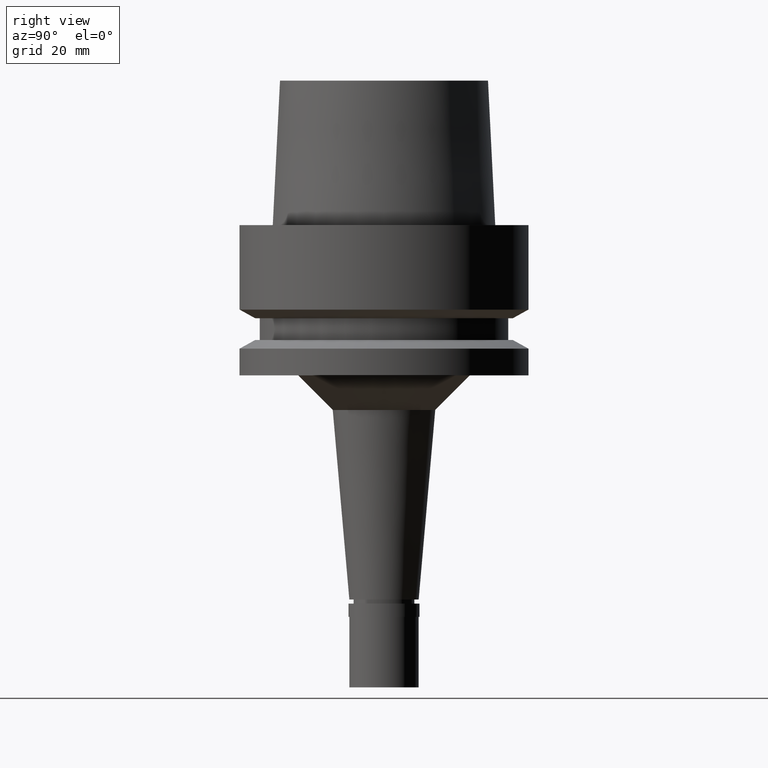
[diagram: clean part render]
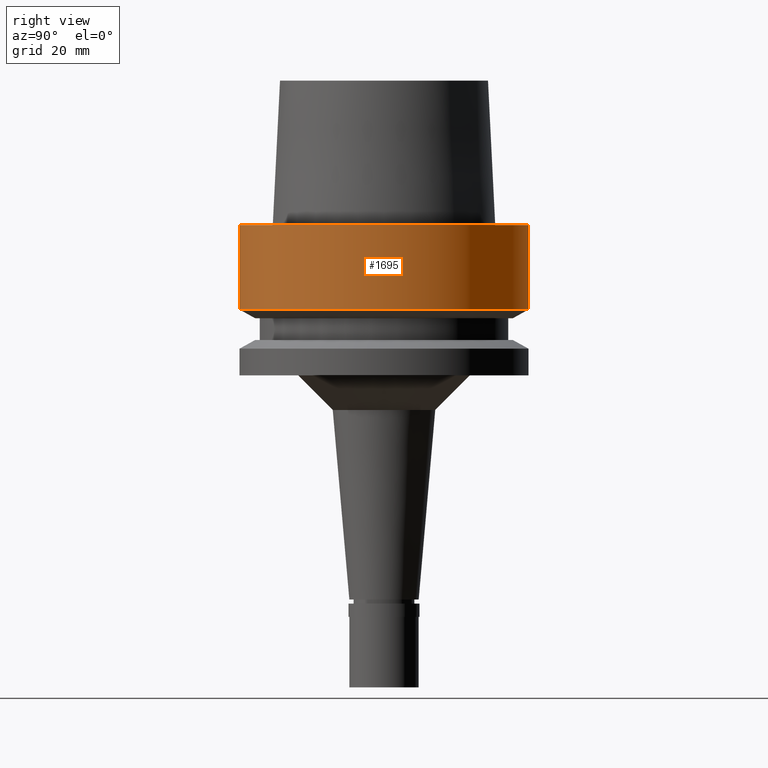
[diagram: same view with one face highlighted and labeled with its STEP entity id]
A machine part, right view. The second image highlights one B-rep face of the part: STEP entity #1695.
In plain terms, the highlighted cylindrical surface (partial cylindrical patch) has radius 25 mm, axis along (0, 0, -1).
Its self-contained STEP definition (entity closure, byte-faithful):
#17 = CIRCLE ( 'NONE', #442, 25.00000000000000000 ) ;
#104 = CARTESIAN_POINT ( 'NONE',  ( 0.0000000000000000000, 0.0000000000000000000, 30.05000000000000071 ) ) ;
#186 = CARTESIAN_POINT ( 'NONE',  ( 0.0000000000000000000, -25.00000000000000000, 2.605323364453999397E-14 ) ) ;
#442 = AXIS2_PLACEMENT_3D ( 'NONE', #2165, #1949, #2556 ) ;
#501 = CARTESIAN_POINT ( 'NONE',  ( 0.0000000000000000000, -25.00000000000000000, 3.907985046680999726E-14 ) ) ;
#535 = VERTEX_POINT ( 'NONE', #905 ) ;
#572 = DIRECTION ( 'NONE',  ( 0.0000000000000000000, 0.0000000000000000000, -1.000000000000000000 ) ) ;
#583 = EDGE_CURVE ( 'NONE', #1531, #535, #1700, .T. ) ;
#618 = CIRCLE ( 'NONE', #1515, 25.00000000000000000 ) ;
#654 = VECTOR ( 'NONE', #1690, 1000.000000000000000 ) ;
#715 = ORIENTED_EDGE ( 'NONE', *, *, #1379, .T. ) ;
#834 = VERTEX_POINT ( 'NONE', #2342 ) ;
#905 = CARTESIAN_POINT ( 'NONE',  ( 0.0000000000000000000, -25.00000000000000000, -14.61835441913999922 ) ) ;
#1169 = CARTESIAN_POINT ( 'NONE',  ( 0.0000000000000000000, 25.00000000000000000, 2.605323364453999397E-14 ) ) ;
#1379 = EDGE_CURVE ( 'NONE', #535, #834, #17, .T. ) ;
#1385 = ORIENTED_EDGE ( 'NONE', *, *, #583, .T. ) ;
#1387 = ORIENTED_EDGE ( 'NONE', *, *, #1789, .T. ) ;
#1515 = AXIS2_PLACEMENT_3D ( 'NONE', #1631, #2178, #2016 ) ;
#1531 = VERTEX_POINT ( 'NONE', #501 ) ;
#1575 = DIRECTION ( 'NONE',  ( 0.0000000000000000000, -1.000000000000000000, 0.0000000000000000000 ) ) ;
#1624 = EDGE_LOOP ( 'NONE', ( #1387, #1385, #715, #2037 ) ) ;
#1631 = CARTESIAN_POINT ( 'NONE',  ( 0.0000000000000000000, 0.0000000000000000000, 3.907985046680999726E-14 ) ) ;
#1648 = AXIS2_PLACEMENT_3D ( 'NONE', #104, #2603, #1575 ) ;
#1690 = DIRECTION ( 'NONE',  ( 0.0000000000000000000, 0.0000000000000000000, -1.000000000000000000 ) ) ;
#1695 = ADVANCED_FACE ( 'NONE', ( #2675 ), #2097, .T. ) ;
#1700 = LINE ( 'NONE', #186, #654 ) ;
#1735 = EDGE_CURVE ( 'NONE', #1796, #834, #2647, .T. ) ;
#1789 = EDGE_CURVE ( 'NONE', #1796, #1531, #618, .T. ) ;
#1796 = VERTEX_POINT ( 'NONE', #1169 ) ;
#1949 = DIRECTION ( 'NONE',  ( 0.0000000000000000000, 0.0000000000000000000, 1.000000000000000000 ) ) ;
#1988 = VECTOR ( 'NONE', #572, 1000.000000000000000 ) ;
#2016 = DIRECTION ( 'NONE',  ( 0.0000000000000000000, 1.000000000000000000, 0.0000000000000000000 ) ) ;
#2037 = ORIENTED_EDGE ( 'NONE', *, *, #1735, .F. ) ;
#2097 = CYLINDRICAL_SURFACE ( 'NONE', #1648, 25.00000000000000000 ) ;
#2165 = CARTESIAN_POINT ( 'NONE',  ( 0.0000000000000000000, 0.0000000000000000000, -14.61835441913999922 ) ) ;
#2178 = DIRECTION ( 'NONE',  ( 0.0000000000000000000, 0.0000000000000000000, -1.000000000000000000 ) ) ;
#2342 = CARTESIAN_POINT ( 'NONE',  ( 0.0000000000000000000, 25.00000000000000000, -14.61835441913999922 ) ) ;
#2556 = DIRECTION ( 'NONE',  ( 0.0000000000000000000, -1.000000000000000000, 0.0000000000000000000 ) ) ;
#2603 = DIRECTION ( 'NONE',  ( 0.0000000000000000000, 0.0000000000000000000, -1.000000000000000000 ) ) ;
#2647 = LINE ( 'NONE', #2657, #1988 ) ;
#2657 = CARTESIAN_POINT ( 'NONE',  ( 0.0000000000000000000, 25.00000000000000000, 2.605323364453999397E-14 ) ) ;
#2675 = FACE_OUTER_BOUND ( 'NONE', #1624, .T. ) ;